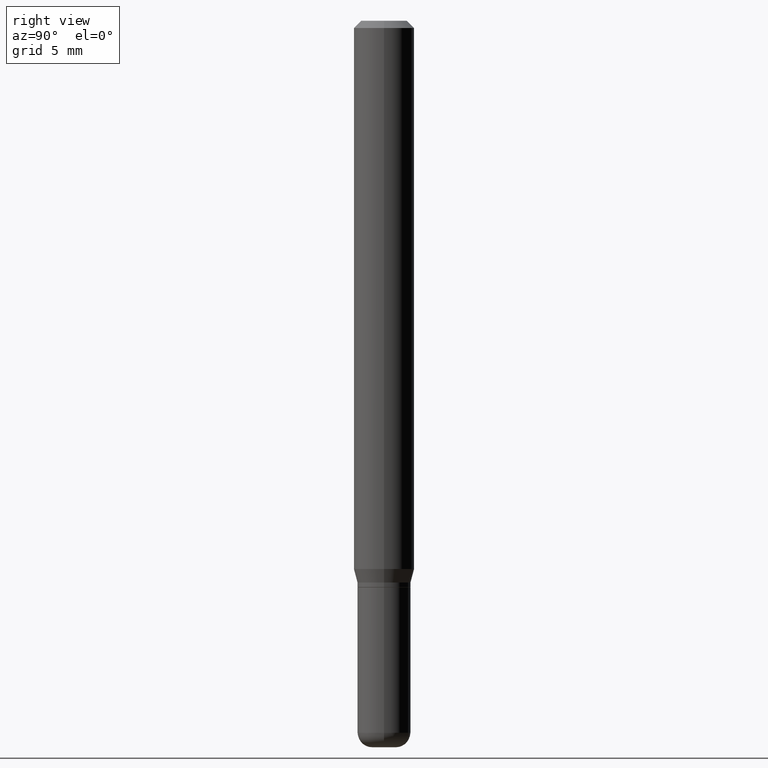
[diagram: clean part render]
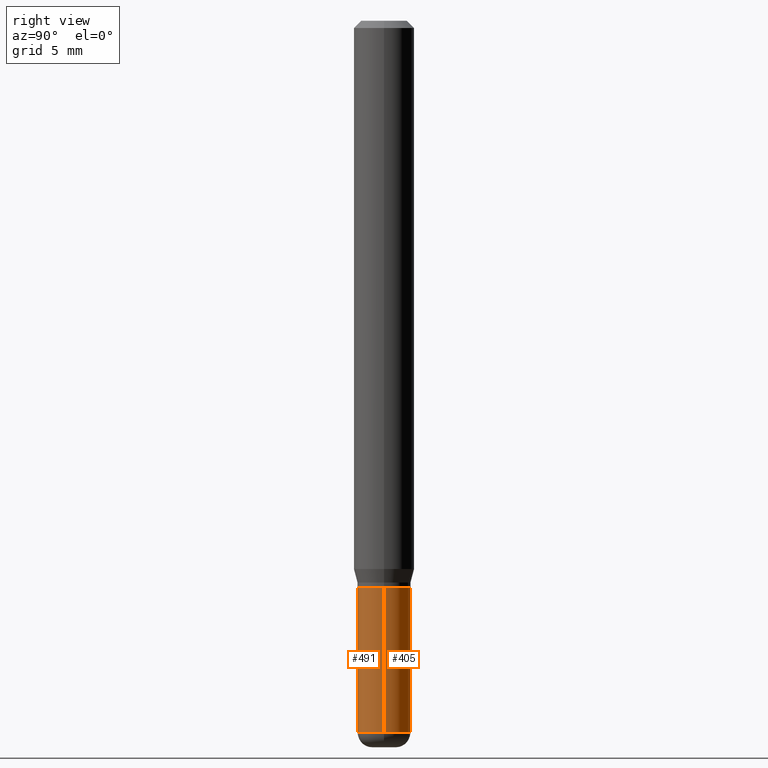
[diagram: same view with one multi-face feature highlighted, each face labeled with its STEP entity id]
A machine part, right view. The highlighted faces form ONE feature: a constant-radius fillet chain: 2 tangent blend faces with common blend radius 1.397 mm. The faces share edges in the B-rep.
Their STEP definitions:
[1] entity #491 (Cylinder):
#14 = LINE ( 'NONE', #384, #236 ) ;
#15 = DIRECTION ( 'NONE',  ( -2.445468806185136597E-29, 3.491481338843145583E-15, 1.000000000000000000 ) ) ;
#33 = EDGE_CURVE ( 'NONE', #158, #426, #332, .T. ) ;
#43 = EDGE_CURVE ( 'NONE', #498, #68, #14, .T. ) ;
#46 = ORIENTED_EDGE ( 'NONE', *, *, #43, .T. ) ;
#68 = VERTEX_POINT ( 'NONE', #175 ) ;
#73 = CARTESIAN_POINT ( 'NONE',  ( -0.05500000000000011130, -4.217956862604895410E-15, -1.470000000000000195 ) ) ;
#82 = AXIS2_PLACEMENT_3D ( 'NONE', #284, #15, #385 ) ;
#99 = CARTESIAN_POINT ( 'NONE',  ( 2.861198503236610065E-29, -4.085033166446480067E-15, -1.170000000000000151 ) ) ;
#100 = ORIENTED_EDGE ( 'NONE', *, *, #33, .F. ) ;
#103 = DIRECTION ( 'NONE',  ( 1.000000000000000000, -6.982962677686262766E-15, 0.000000000000000000 ) ) ;
#110 = CARTESIAN_POINT ( 'NONE',  ( 0.05500000000000011130, -5.516540515372169792E-15, -1.470000000000000195 ) ) ;
#124 = CIRCLE ( 'NONE', #511, 0.05500000000000000028 ) ;
#145 = DIRECTION ( 'NONE',  ( 1.000000000000000000, -6.982962677686265922E-15, 4.876176775795935793E-29 ) ) ;
#158 = VERTEX_POINT ( 'NONE', #73 ) ;
#175 = CARTESIAN_POINT ( 'NONE',  ( 0.05500000000000000028, -4.469096113719225052E-15, -1.170000000000000151 ) ) ;
#210 = ORIENTED_EDGE ( 'NONE', *, *, #389, .F. ) ;
#214 = FACE_OUTER_BOUND ( 'NONE', #512, .T. ) ;
#236 = VECTOR ( 'NONE', #287, 39.37007874015748143 ) ;
#251 = ORIENTED_EDGE ( 'NONE', *, *, #383, .T. ) ;
#252 = CARTESIAN_POINT ( 'NONE',  ( -0.05500000000000006273, 3.907985046680555479E-16, -2.705414299640201165E-30 ) ) ;
#284 = CARTESIAN_POINT ( 'NONE',  ( 3.594839145092150820E-29, -5.132477568099424807E-15, -1.470000000000000195 ) ) ;
#287 = DIRECTION ( 'NONE',  ( -2.445468806185136877E-29, 3.491481338843145188E-15, 1.000000000000000000 ) ) ;
#303 = CARTESIAN_POINT ( 'NONE',  ( -0.05500000000000000028, -4.217956862604896988E-15, -1.170000000000000151 ) ) ;
#322 = AXIS2_PLACEMENT_3D ( 'NONE', #472, #356, #145 ) ;
#332 = LINE ( 'NONE', #252, #474 ) ;
#333 = DIRECTION ( 'NONE',  ( -2.445468806185136597E-29, 3.491481338843145583E-15, 1.000000000000000000 ) ) ;
#356 = DIRECTION ( 'NONE',  ( -2.445468806185136597E-29, 3.491481338843145583E-15, 1.000000000000000000 ) ) ;
#378 = DIRECTION ( 'NONE',  ( -2.445468806185136877E-29, 3.491481338843145188E-15, 1.000000000000000000 ) ) ;
#383 = EDGE_CURVE ( 'NONE', #158, #498, #479, .T. ) ;
#384 = CARTESIAN_POINT ( 'NONE',  ( 0.05500000000000006273, -3.840629472727450832E-16, 2.681897226687767629E-30 ) ) ;
#385 = DIRECTION ( 'NONE',  ( 1.000000000000000000, -6.982962677686265133E-15, 0.000000000000000000 ) ) ;
#389 = EDGE_CURVE ( 'NONE', #426, #68, #124, .T. ) ;
#426 = VERTEX_POINT ( 'NONE', #303 ) ;
#428 = CYLINDRICAL_SURFACE ( 'NONE', #322, 0.05500000000000006273 ) ;
#472 = CARTESIAN_POINT ( 'NONE',  ( 0.000000000000000000, 0.000000000000000000, 0.000000000000000000 ) ) ;
#474 = VECTOR ( 'NONE', #378, 39.37007874015748143 ) ;
#479 = CIRCLE ( 'NONE', #82, 0.05500000000000011130 ) ;
#491 = ADVANCED_FACE ( 'NONE', ( #214 ), #428, .T. ) ;
#498 = VERTEX_POINT ( 'NONE', #110 ) ;
#511 = AXIS2_PLACEMENT_3D ( 'NONE', #99, #333, #103 ) ;
#512 = EDGE_LOOP ( 'NONE', ( #100, #251, #46, #210 ) ) ;
[2] entity #405 (Cylinder):
#14 = LINE ( 'NONE', #384, #236 ) ;
#24 = DIRECTION ( 'NONE',  ( 1.000000000000000000, -6.982962677686262766E-15, 0.000000000000000000 ) ) ;
#33 = EDGE_CURVE ( 'NONE', #158, #426, #332, .T. ) ;
#43 = EDGE_CURVE ( 'NONE', #498, #68, #14, .T. ) ;
#48 = ORIENTED_EDGE ( 'NONE', *, *, #273, .T. ) ;
#68 = VERTEX_POINT ( 'NONE', #175 ) ;
#69 = DIRECTION ( 'NONE',  ( 1.000000000000000000, -6.982962677686265133E-15, 0.000000000000000000 ) ) ;
#73 = CARTESIAN_POINT ( 'NONE',  ( -0.05500000000000011130, -4.217956862604895410E-15, -1.470000000000000195 ) ) ;
#87 = CYLINDRICAL_SURFACE ( 'NONE', #275, 0.05500000000000006273 ) ;
#96 = EDGE_CURVE ( 'NONE', #68, #426, #188, .T. ) ;
#110 = CARTESIAN_POINT ( 'NONE',  ( 0.05500000000000011130, -5.516540515372169792E-15, -1.470000000000000195 ) ) ;
#144 = DIRECTION ( 'NONE',  ( -2.445468806185136597E-29, 3.491481338843145583E-15, 1.000000000000000000 ) ) ;
#158 = VERTEX_POINT ( 'NONE', #73 ) ;
#159 = AXIS2_PLACEMENT_3D ( 'NONE', #513, #144, #69 ) ;
#173 = FACE_OUTER_BOUND ( 'NONE', #457, .T. ) ;
#175 = CARTESIAN_POINT ( 'NONE',  ( 0.05500000000000000028, -4.469096113719225052E-15, -1.170000000000000151 ) ) ;
#178 = CIRCLE ( 'NONE', #159, 0.05500000000000011130 ) ;
#188 = CIRCLE ( 'NONE', #413, 0.05500000000000000028 ) ;
#236 = VECTOR ( 'NONE', #287, 39.37007874015748143 ) ;
#252 = CARTESIAN_POINT ( 'NONE',  ( -0.05500000000000006273, 3.907985046680555479E-16, -2.705414299640201165E-30 ) ) ;
#260 = CARTESIAN_POINT ( 'NONE',  ( 0.000000000000000000, 0.000000000000000000, 0.000000000000000000 ) ) ;
#273 = EDGE_CURVE ( 'NONE', #498, #158, #178, .T. ) ;
#275 = AXIS2_PLACEMENT_3D ( 'NONE', #260, #288, #434 ) ;
#279 = ORIENTED_EDGE ( 'NONE', *, *, #96, .F. ) ;
#287 = DIRECTION ( 'NONE',  ( -2.445468806185136877E-29, 3.491481338843145188E-15, 1.000000000000000000 ) ) ;
#288 = DIRECTION ( 'NONE',  ( -2.445468806185136597E-29, 3.491481338843145583E-15, 1.000000000000000000 ) ) ;
#303 = CARTESIAN_POINT ( 'NONE',  ( -0.05500000000000000028, -4.217956862604896988E-15, -1.170000000000000151 ) ) ;
#332 = LINE ( 'NONE', #252, #474 ) ;
#378 = DIRECTION ( 'NONE',  ( -2.445468806185136877E-29, 3.491481338843145188E-15, 1.000000000000000000 ) ) ;
#384 = CARTESIAN_POINT ( 'NONE',  ( 0.05500000000000006273, -3.840629472727450832E-16, 2.681897226687767629E-30 ) ) ;
#391 = CARTESIAN_POINT ( 'NONE',  ( 2.861198503236610065E-29, -4.085033166446480067E-15, -1.170000000000000151 ) ) ;
#405 = ADVANCED_FACE ( 'NONE', ( #173 ), #87, .T. ) ;
#413 = AXIS2_PLACEMENT_3D ( 'NONE', #391, #468, #24 ) ;
#426 = VERTEX_POINT ( 'NONE', #303 ) ;
#434 = DIRECTION ( 'NONE',  ( 1.000000000000000000, -6.982962677686265922E-15, 4.876176775795935793E-29 ) ) ;
#452 = ORIENTED_EDGE ( 'NONE', *, *, #43, .F. ) ;
#457 = EDGE_LOOP ( 'NONE', ( #48, #516, #279, #452 ) ) ;
#468 = DIRECTION ( 'NONE',  ( -2.445468806185136597E-29, 3.491481338843145583E-15, 1.000000000000000000 ) ) ;
#474 = VECTOR ( 'NONE', #378, 39.37007874015748143 ) ;
#498 = VERTEX_POINT ( 'NONE', #110 ) ;
#513 = CARTESIAN_POINT ( 'NONE',  ( 3.594839145092150820E-29, -5.132477568099424807E-15, -1.470000000000000195 ) ) ;
#516 = ORIENTED_EDGE ( 'NONE', *, *, #33, .T. ) ;